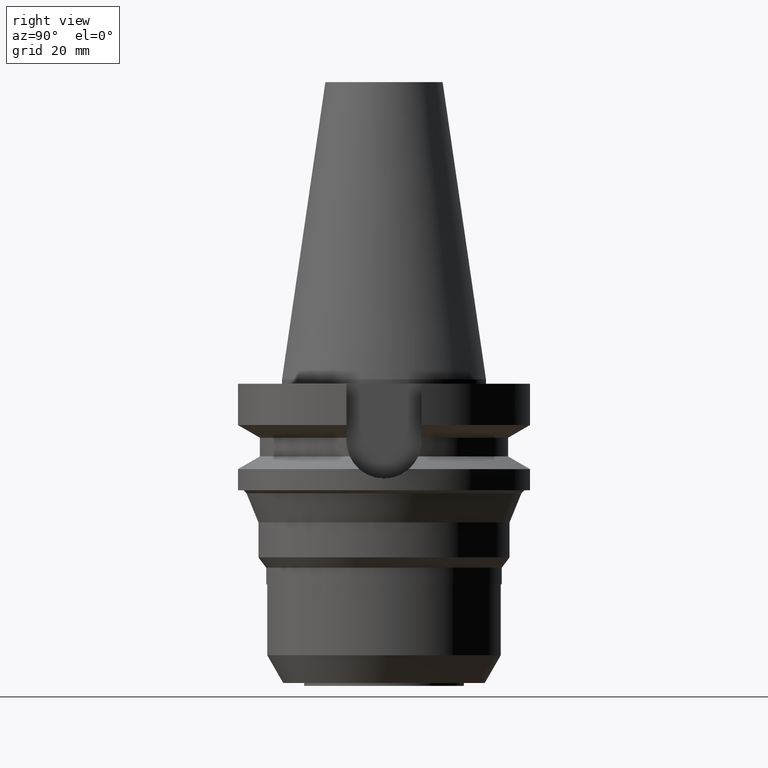
[diagram: clean part render]
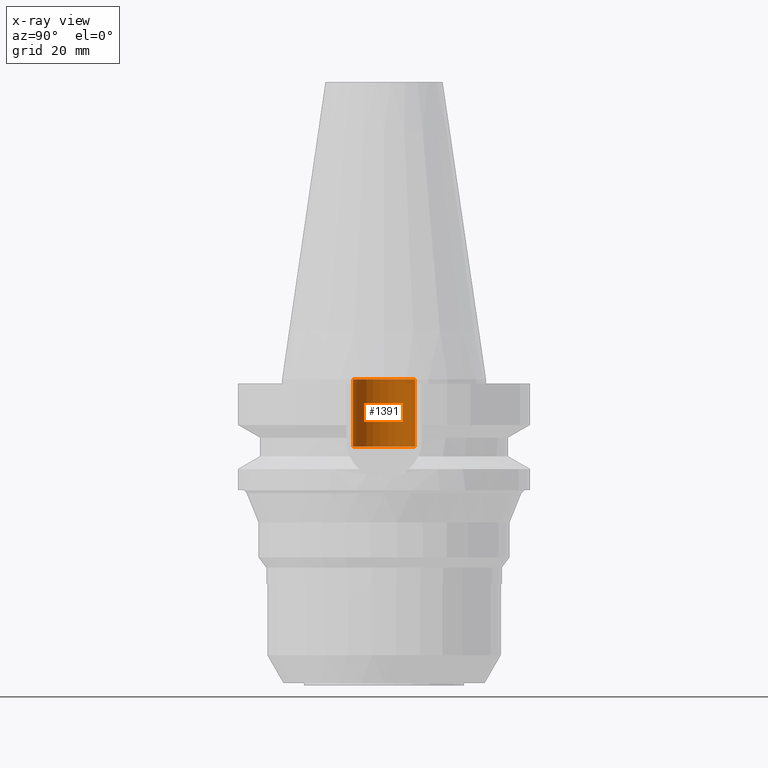
[diagram: x-ray — body ghosted, one internal face saturated and labeled with its STEP entity id]
A machine part, right view, then the same camera in x-ray: the body is ghosted and one INTERNAL B-rep face — a face not visible from any outside direction — is saturated and labeled: STEP entity #1391.
In plain terms, the highlighted cylindrical surface (edge-blend (fillet) strip) has radius 10.6 mm, axis along (0, 0, -1).
Its self-contained STEP definition (entity closure, byte-faithful):
#86=DIRECTION('',(0.E0,0.E0,1.E0));
#87=VECTOR('',#86,2.3E1);
#88=CARTESIAN_POINT('',(0.E0,-1.06E1,-2.3E1));
#89=LINE('',#88,#87);
#93=CARTESIAN_POINT('',(0.E0,2.597965719711E-14,-1.705302565824E-13));
#94=DIRECTION('',(0.E0,0.E0,-1.E0));
#95=DIRECTION('',(0.E0,-1.E0,0.E0));
#96=AXIS2_PLACEMENT_3D('',#93,#94,#95);
#101=DIRECTION('',(0.E0,0.E0,1.E0));
#102=VECTOR('',#101,2.3E1);
#103=CARTESIAN_POINT('',(0.E0,1.06E1,-2.3E1));
#104=LINE('',#103,#102);
#124=CARTESIAN_POINT('',(0.E0,2.597965719711E-14,-2.3E1));
#125=DIRECTION('',(0.E0,0.E0,-1.E0));
#126=DIRECTION('',(0.E0,-1.E0,0.E0));
#127=AXIS2_PLACEMENT_3D('',#124,#125,#126);
#1142=CARTESIAN_POINT('',(0.E0,1.06E1,-1.847411112976E-13));
#1143=VERTEX_POINT('',#1142);
#1144=CARTESIAN_POINT('',(0.E0,-1.06E1,-1.847411112976E-13));
#1145=VERTEX_POINT('',#1144);
#1146=CARTESIAN_POINT('',(0.E0,1.06E1,-2.3E1));
#1147=VERTEX_POINT('',#1146);
#1148=CARTESIAN_POINT('',(0.E0,-1.06E1,-2.3E1));
#1149=VERTEX_POINT('',#1148);
#1377=CARTESIAN_POINT('',(0.E0,2.597965719711E-14,1.1214E2));
#1378=DIRECTION('',(0.E0,0.E0,-1.E0));
#1379=DIRECTION('',(0.E0,-1.E0,0.E0));
#1380=AXIS2_PLACEMENT_3D('',#1377,#1378,#1379);
#1381=CYLINDRICAL_SURFACE('',#1380,1.06E1);
#1383=ORIENTED_EDGE('',*,*,#1382,.F.);
#1385=ORIENTED_EDGE('',*,*,#1384,.F.);
#1387=ORIENTED_EDGE('',*,*,#1386,.T.);
#1388=ORIENTED_EDGE('',*,*,#1370,.T.);
#1389=EDGE_LOOP('',(#1383,#1385,#1387,#1388));
#1390=FACE_OUTER_BOUND('',#1389,.F.);
#97=CIRCLE('',#96,1.06E1);
#128=CIRCLE('',#127,1.06E1);
#1370=EDGE_CURVE('',#1145,#1143,#97,.T.);
#1382=EDGE_CURVE('',#1147,#1143,#104,.T.);
#1384=EDGE_CURVE('',#1149,#1147,#128,.T.);
#1386=EDGE_CURVE('',#1149,#1145,#89,.T.);
#1391=ADVANCED_FACE('',(#1390),#1381,.F.);